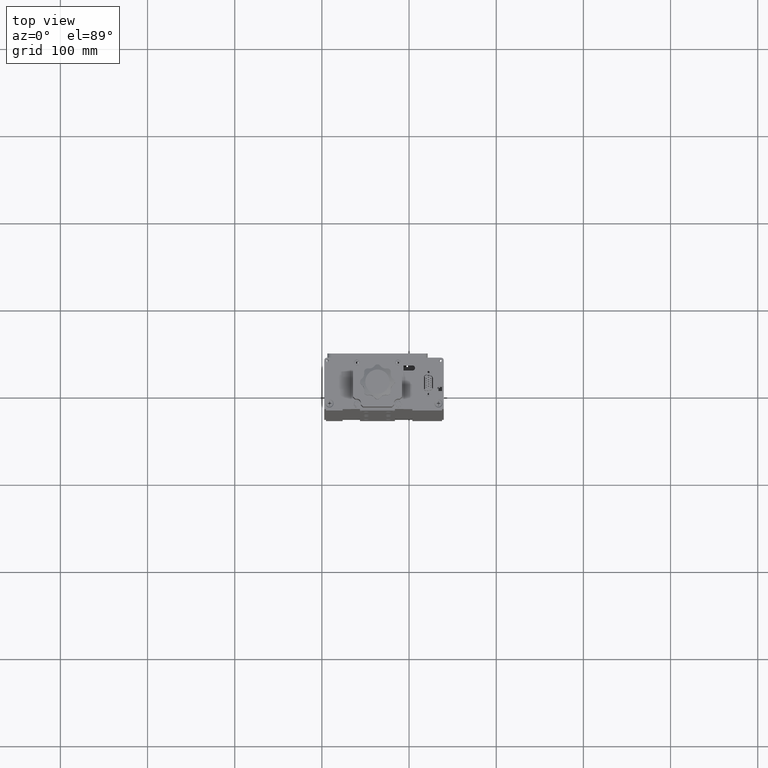
[diagram: clean part render]
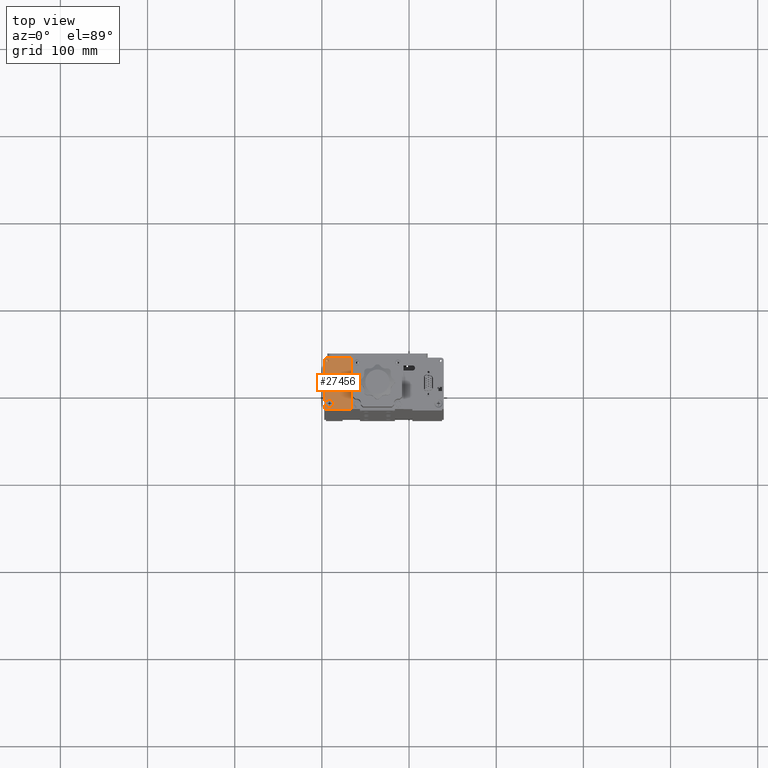
[diagram: same view with one face highlighted and labeled with its STEP entity id]
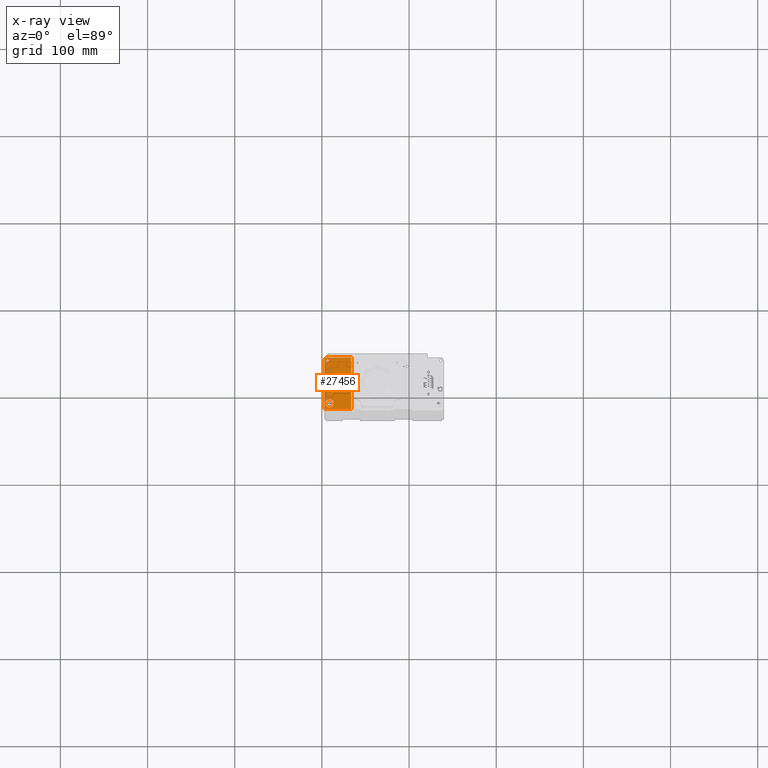
[diagram: x-ray of the same camera — body ghosted, the highlighted face saturated]
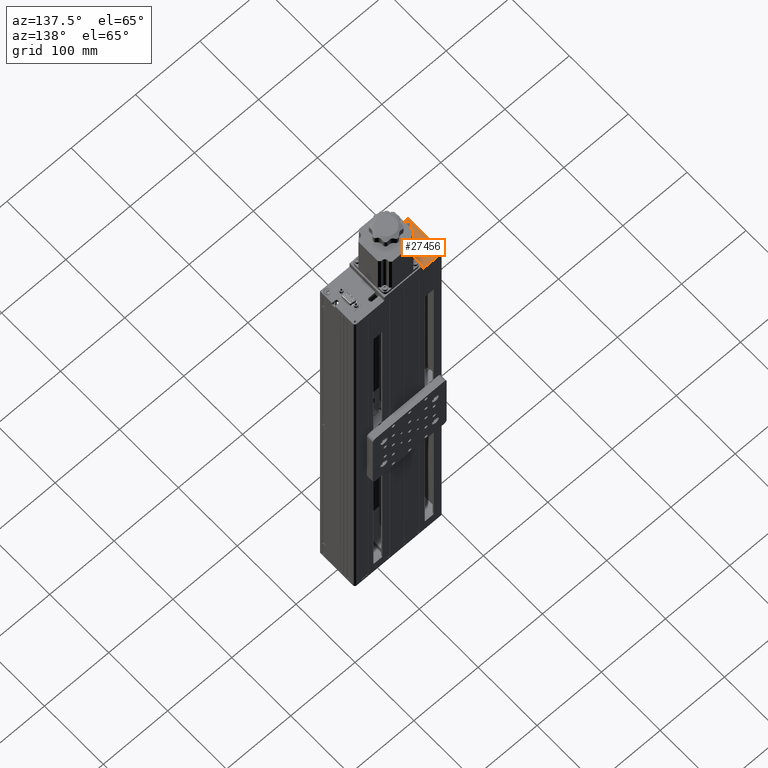
[diagram: same view with one face highlighted and labeled with its STEP entity id]
A machine part, top view. The second image highlights one B-rep face of the part: STEP entity #27456.
The next image is the same camera in x-ray: the body ghosted, the highlighted face saturated — about 0% of this face is hidden behind the body in this view.
A second angle (auxiliary view) of the same face is appended — the face is thin or edge-on in the first view.
In plain terms, the highlighted planar face has unit normal (0, 0, 1).
Its self-contained STEP definition (entity closure, byte-faithful):
#724 = CARTESIAN_POINT ( 'NONE',  ( -192.0856926832512400, 30.32987360368544900, 106.1657323667232800 ) ) ;
#1473 = CIRCLE ( 'NONE', #36278, 4.700000000000009900 ) ;
#2039 = VECTOR ( 'NONE', #3156, 1000.000000000000000 ) ;
#3156 = DIRECTION ( 'NONE',  ( 0.0000000000000000000, -1.000000000000000000, 0.0000000000000000000 ) ) ;
#4676 = ORIENTED_EDGE ( 'NONE', *, *, #27929, .T. ) ;
#4731 = AXIS2_PLACEMENT_3D ( 'NONE', #36491, #17324, #39686 ) ;
#4791 = EDGE_CURVE ( 'NONE', #5603, #9645, #10570, .T. ) ;
#4812 = VECTOR ( 'NONE', #8375, 1000.000000000000000 ) ;
#5148 = CARTESIAN_POINT ( 'NONE',  ( -166.2356926832512400, 33.82987360368544900, 106.1657323667232800 ) ) ;
#5603 = VERTEX_POINT ( 'NONE', #11472 ) ;
#6029 = EDGE_CURVE ( 'NONE', #16331, #7077, #20682, .T. ) ;
#6060 = LINE ( 'NONE', #10562, #14575 ) ;
#6231 = CARTESIAN_POINT ( 'NONE',  ( -166.2356926832512400, -25.17012639631453700, 106.1657323667232800 ) ) ;
#7077 = VERTEX_POINT ( 'NONE', #41118 ) ;
#7612 = DIRECTION ( 'NONE',  ( 0.0000000000000000000, 0.0000000000000000000, 1.000000000000000000 ) ) ;
#8375 = DIRECTION ( 'NONE',  ( -1.176083712526649200E-016, 1.000000000000000000, -0.0000000000000000000 ) ) ;
#8608 = DIRECTION ( 'NONE',  ( 1.000000000000000000, 0.0000000000000000000, 0.0000000000000000000 ) ) ;
#9297 = CARTESIAN_POINT ( 'NONE',  ( -166.2356926832512400, -25.17012639631453700, 106.1657323667232800 ) ) ;
#9645 = VERTEX_POINT ( 'NONE', #13499 ) ;
#10562 = CARTESIAN_POINT ( 'NONE',  ( -166.2356926832512400, 33.82987360368544900, 106.1657323667232800 ) ) ;
#10570 = LINE ( 'NONE', #22042, #2039 ) ;
#10705 = PLANE ( 'NONE',  #30935 ) ;
#10991 = ORIENTED_EDGE ( 'NONE', *, *, #11815, .F. ) ;
#11472 = CARTESIAN_POINT ( 'NONE',  ( -197.2356926832512400, 30.82987360368544900, 106.1657323667232800 ) ) ;
#11739 = ORIENTED_EDGE ( 'NONE', *, *, #36736, .F. ) ;
#11815 = EDGE_CURVE ( 'NONE', #7077, #16331, #1473, .T. ) ;
#12424 = DIRECTION ( 'NONE',  ( -0.0000000000000000000, -0.0000000000000000000, 1.000000000000000000 ) ) ;
#13387 = CARTESIAN_POINT ( 'NONE',  ( -191.2356926832512400, -18.67012639631454700, 106.1657323667232800 ) ) ;
#13499 = CARTESIAN_POINT ( 'NONE',  ( -197.2356926832512400, -25.17012639631454400, 106.1657323667232800 ) ) ;
#13504 = CARTESIAN_POINT ( 'NONE',  ( -193.7356926832512400, 30.32987360368544900, 106.1657323667232800 ) ) ;
#13673 = FACE_OUTER_BOUND ( 'NONE', #23993, .T. ) ;
#14575 = VECTOR ( 'NONE', #29702, 1000.000000000000000 ) ;
#14854 = EDGE_LOOP ( 'NONE', ( #10991, #22925 ) ) ;
#15358 = CARTESIAN_POINT ( 'NONE',  ( -194.2356926832512400, 30.82987360368544900, 106.1657323667232800 ) ) ;
#15410 = EDGE_CURVE ( 'NONE', #9645, #15850, #39636, .T. ) ;
#15565 = VERTEX_POINT ( 'NONE', #29335 ) ;
#15850 = VERTEX_POINT ( 'NONE', #9297 ) ;
#16331 = VERTEX_POINT ( 'NONE', #18236 ) ;
#16695 = DIRECTION ( 'NONE',  ( 1.000000000000000000, 0.0000000000000000000, 0.0000000000000000000 ) ) ;
#16812 = CIRCLE ( 'NONE', #18943, 3.000000000000002700 ) ;
#16831 = ORIENTED_EDGE ( 'NONE', *, *, #15410, .T. ) ;
#17324 = DIRECTION ( 'NONE',  ( 0.0000000000000000000, 0.0000000000000000000, 1.000000000000000000 ) ) ;
#18236 = CARTESIAN_POINT ( 'NONE',  ( -195.9356926832512600, -18.67012639631454700, 106.1657323667232800 ) ) ;
#18597 = CARTESIAN_POINT ( 'NONE',  ( -195.3856926832512500, 30.32987360368544900, 106.1657323667232800 ) ) ;
#18619 = DIRECTION ( 'NONE',  ( 1.000000000000000000, 0.0000000000000000000, 0.0000000000000000000 ) ) ;
#18943 = AXIS2_PLACEMENT_3D ( 'NONE', #15358, #37756, #18619 ) ;
#20682 = CIRCLE ( 'NONE', #20734, 4.700000000000009900 ) ;
#20734 = AXIS2_PLACEMENT_3D ( 'NONE', #40338, #30448, #8608 ) ;
#22042 = CARTESIAN_POINT ( 'NONE',  ( -197.2356926832512400, 30.82987360368544900, 106.1657323667232800 ) ) ;
#22139 = FACE_BOUND ( 'NONE', #14854, .T. ) ;
#22925 = ORIENTED_EDGE ( 'NONE', *, *, #6029, .F. ) ;
#23338 = DIRECTION ( 'NONE',  ( 1.000000000000000000, 0.0000000000000000000, 0.0000000000000000000 ) ) ;
#23993 = EDGE_LOOP ( 'NONE', ( #26944, #37260, #16831, #38266, #4676 ) ) ;
#24746 = VERTEX_POINT ( 'NONE', #724 ) ;
#25028 = EDGE_LOOP ( 'NONE', ( #31433, #11739 ) ) ;
#26684 = EDGE_CURVE ( 'NONE', #15850, #35557, #30327, .T. ) ;
#26754 = CARTESIAN_POINT ( 'NONE',  ( -194.2356926832512400, 30.82987360368544900, 106.1657323667232800 ) ) ;
#26944 = ORIENTED_EDGE ( 'NONE', *, *, #28747, .T. ) ;
#27088 = CIRCLE ( 'NONE', #37935, 1.650000000000012600 ) ;
#27456 = ADVANCED_FACE ( 'NONE', ( #22139, #13673, #38179 ), #10705, .T. ) ;
#27900 = EDGE_CURVE ( 'NONE', #24746, #31246, #27088, .T. ) ;
#27929 = EDGE_CURVE ( 'NONE', #35557, #15565, #6060, .T. ) ;
#28747 = EDGE_CURVE ( 'NONE', #15565, #5603, #16812, .T. ) ;
#29335 = CARTESIAN_POINT ( 'NONE',  ( -194.2356926832512400, 33.82987360368544900, 106.1657323667232800 ) ) ;
#29702 = DIRECTION ( 'NONE',  ( -1.000000000000000000, 0.0000000000000000000, 0.0000000000000000000 ) ) ;
#29989 = DIRECTION ( 'NONE',  ( 1.000000000000000000, 0.0000000000000000000, -0.0000000000000000000 ) ) ;
#30327 = LINE ( 'NONE', #5148, #4812 ) ;
#30448 = DIRECTION ( 'NONE',  ( -0.0000000000000000000, -0.0000000000000000000, 1.000000000000000000 ) ) ;
#30935 = AXIS2_PLACEMENT_3D ( 'NONE', #26754, #7612, #29989 ) ;
#31105 = VECTOR ( 'NONE', #41471, 1000.000000000000000 ) ;
#31246 = VERTEX_POINT ( 'NONE', #18597 ) ;
#31433 = ORIENTED_EDGE ( 'NONE', *, *, #27900, .F. ) ;
#34546 = CIRCLE ( 'NONE', #4731, 1.650000000000012600 ) ;
#35557 = VERTEX_POINT ( 'NONE', #39202 ) ;
#35849 = DIRECTION ( 'NONE',  ( 0.0000000000000000000, 0.0000000000000000000, 1.000000000000000000 ) ) ;
#36278 = AXIS2_PLACEMENT_3D ( 'NONE', #13387, #12424, #23338 ) ;
#36491 = CARTESIAN_POINT ( 'NONE',  ( -193.7356926832512400, 30.32987360368544900, 106.1657323667232800 ) ) ;
#36736 = EDGE_CURVE ( 'NONE', #31246, #24746, #34546, .T. ) ;
#37260 = ORIENTED_EDGE ( 'NONE', *, *, #4791, .T. ) ;
#37756 = DIRECTION ( 'NONE',  ( 0.0000000000000000000, 0.0000000000000000000, 1.000000000000000000 ) ) ;
#37935 = AXIS2_PLACEMENT_3D ( 'NONE', #13504, #35849, #16695 ) ;
#38179 = FACE_BOUND ( 'NONE', #25028, .T. ) ;
#38266 = ORIENTED_EDGE ( 'NONE', *, *, #26684, .T. ) ;
#39202 = CARTESIAN_POINT ( 'NONE',  ( -166.2356926832512400, 33.82987360368544900, 106.1657323667232800 ) ) ;
#39636 = LINE ( 'NONE', #6231, #31105 ) ;
#39686 = DIRECTION ( 'NONE',  ( 1.000000000000000000, 0.0000000000000000000, 0.0000000000000000000 ) ) ;
#40338 = CARTESIAN_POINT ( 'NONE',  ( -191.2356926832512400, -18.67012639631454700, 106.1657323667232800 ) ) ;
#41118 = CARTESIAN_POINT ( 'NONE',  ( -186.5356926832512300, -18.67012639631454700, 106.1657323667232800 ) ) ;
#41471 = DIRECTION ( 'NONE',  ( 1.000000000000000000, 2.238352872228137700E-016, -0.0000000000000000000 ) ) ;